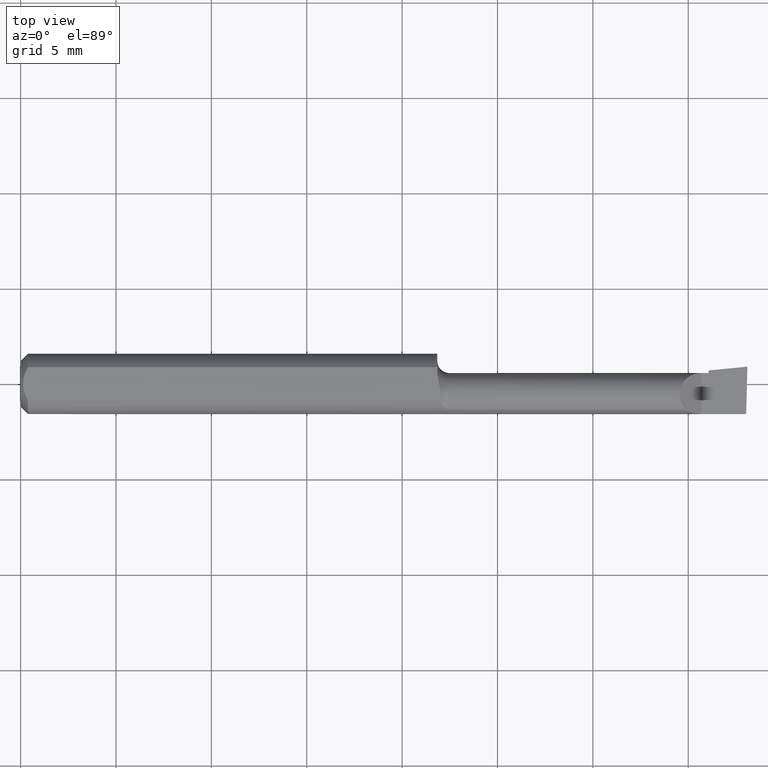
[diagram: clean part render]
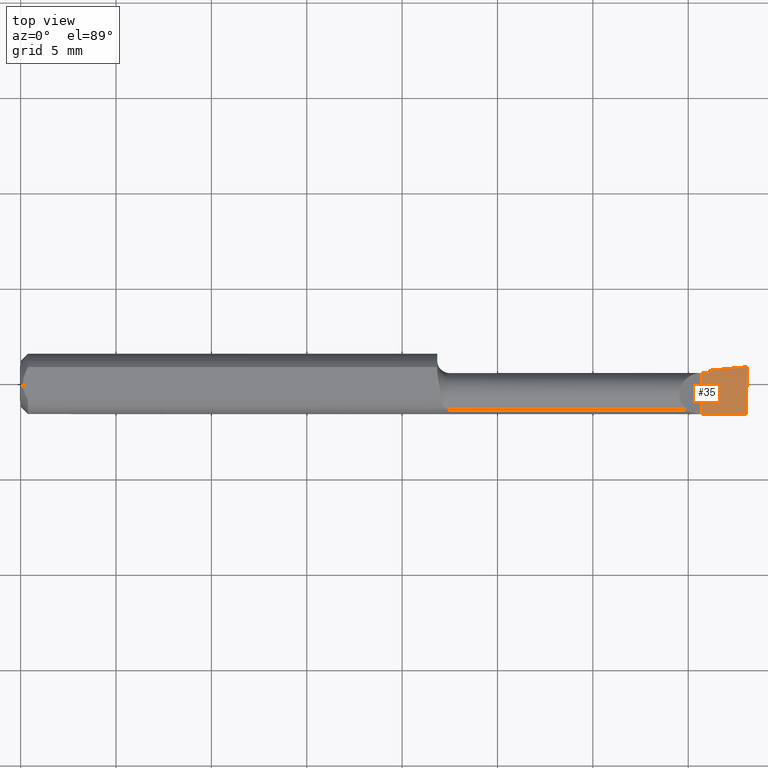
[diagram: same view with one face highlighted and labeled with its STEP entity id]
A machine part, top view. The second image highlights one B-rep face of the part: STEP entity #35.
In plain terms, the highlighted planar face has unit normal (-0, 0, -1).
Its self-contained STEP definition (entity closure, byte-faithful):
#5 = CARTESIAN_POINT ( 'NONE',  ( 1.405000000000000249, -0.06235000000000005121, 1.163414459189985436E-17 ) ) ;
#15 = LINE ( 'NONE', #594, #94 ) ;
#27 = EDGE_CURVE ( 'NONE', #593, #373, #350, .T. ) ;
#35 = ADVANCED_FACE ( 'NONE', ( #298 ), #398, .F. ) ;
#58 = DIRECTION ( 'NONE',  ( 0.02617694830784713170, 0.9996573249755579260, -3.584133854792137963E-18 ) ) ;
#69 = EDGE_CURVE ( 'NONE', #427, #373, #152, .T. ) ;
#73 = VECTOR ( 'NONE', #428, 39.37007874015748143 ) ;
#74 = LINE ( 'NONE', #502, #256 ) ;
#76 = ORIENTED_EDGE ( 'NONE', *, *, #407, .F. ) ;
#78 = VERTEX_POINT ( 'NONE', #5 ) ;
#94 = VECTOR ( 'NONE', #147, 39.37007874015748143 ) ;
#133 = LINE ( 'NONE', #370, #73 ) ;
#147 = DIRECTION ( 'NONE',  ( -0.000000000000000000, 1.000000000000000000, -0.000000000000000000 ) ) ;
#152 = LINE ( 'NONE', #492, #448 ) ;
#155 = LINE ( 'NONE', #494, #179 ) ;
#179 = VECTOR ( 'NONE', #386, 39.37007874015748143 ) ;
#204 = CARTESIAN_POINT ( 'NONE',  ( 1.500000000000000222, -0.2500000000000000555, 0.000000000000000000 ) ) ;
#214 = DIRECTION ( 'NONE',  ( -1.000000000000000000, -0.000000000000000000, -0.000000000000000000 ) ) ;
#216 = EDGE_LOOP ( 'NONE', ( #519, #430, #363, #76, #411, #379 ) ) ;
#256 = VECTOR ( 'NONE', #214, 39.37007874015748143 ) ;
#281 = CARTESIAN_POINT ( 'NONE',  ( 1.497433779686218935, -0.06235000000000005121, 2.433176676323288696E-19 ) ) ;
#297 = VECTOR ( 'NONE', #342, 39.37007874015748854 ) ;
#298 = FACE_OUTER_BOUND ( 'NONE', #216, .T. ) ;
#329 = VERTEX_POINT ( 'NONE', #574 ) ;
#342 = DIRECTION ( 'NONE',  ( 0.9953961983671786307, 0.09584575252022466130, -1.219008768213809603E-16 ) ) ;
#350 = LINE ( 'NONE', #540, #297 ) ;
#363 = ORIENTED_EDGE ( 'NONE', *, *, #27, .F. ) ;
#370 = CARTESIAN_POINT ( 'NONE',  ( 1.420000000000000151, -0.2500000000000000555, 9.797174393178828616E-18 ) ) ;
#372 = CARTESIAN_POINT ( 'NONE',  ( 1.500000000000000222, 0.03565000000000798086, 2.613156668236408690E-14 ) ) ;
#373 = VERTEX_POINT ( 'NONE', #372 ) ;
#379 = ORIENTED_EDGE ( 'NONE', *, *, #515, .F. ) ;
#386 = DIRECTION ( 'NONE',  ( 1.000000000000000000, 5.691349986800549142E-18, 0.000000000000000000 ) ) ;
#398 = PLANE ( 'NONE',  #470 ) ;
#407 = EDGE_CURVE ( 'NONE', #612, #593, #133, .T. ) ;
#411 = ORIENTED_EDGE ( 'NONE', *, *, #522, .F. ) ;
#427 = VERTEX_POINT ( 'NONE', #281 ) ;
#428 = DIRECTION ( 'NONE',  ( -5.691349986800549142E-18, 1.000000000000000000, 6.969893544162626646E-34 ) ) ;
#430 = ORIENTED_EDGE ( 'NONE', *, *, #69, .T. ) ;
#435 = DIRECTION ( 'NONE',  ( -1.224646799147353947E-16, 0.000000000000000000, -1.000000000000000000 ) ) ;
#448 = VECTOR ( 'NONE', #58, 39.37007874015748854 ) ;
#470 = AXIS2_PLACEMENT_3D ( 'NONE', #204, #435, #495 ) ;
#492 = CARTESIAN_POINT ( 'NONE',  ( 1.492525117049605665, -0.2498042633013223268, 9.154091479201524683E-19 ) ) ;
#494 = CARTESIAN_POINT ( 'NONE',  ( -2.563953169053419327E-19, 0.02264999999999994448, 1.836970198721030427E-16 ) ) ;
#495 = DIRECTION ( 'NONE',  ( -1.000000000000000000, 0.000000000000000000, 1.224646799147353947E-16 ) ) ;
#502 = CARTESIAN_POINT ( 'NONE',  ( 2.249639673992788601E-32, -0.06234999999999999570, 1.836970198721030427E-16 ) ) ;
#515 = EDGE_CURVE ( 'NONE', #78, #329, #15, .T. ) ;
#519 = ORIENTED_EDGE ( 'NONE', *, *, #632, .F. ) ;
#522 = EDGE_CURVE ( 'NONE', #329, #612, #155, .T. ) ;
#540 = CARTESIAN_POINT ( 'NONE',  ( 0.8971276994979847652, -0.02239999999999999977, 7.383056331043944924E-17 ) ) ;
#547 = CARTESIAN_POINT ( 'NONE',  ( 1.420000000000000151, 0.02264999999999999653, 1.836970198721031906E-16 ) ) ;
#555 = CARTESIAN_POINT ( 'NONE',  ( 1.420000000000000151, 0.02794687614419801361, 1.856802933193678953E-16 ) ) ;
#574 = CARTESIAN_POINT ( 'NONE',  ( 1.405000000000000249, 0.02264999999999992714, 1.163414459189985436E-17 ) ) ;
#593 = VERTEX_POINT ( 'NONE', #555 ) ;
#594 = CARTESIAN_POINT ( 'NONE',  ( 1.405000000000000249, -0.2500000000000000555, 1.163414459189985436E-17 ) ) ;
#612 = VERTEX_POINT ( 'NONE', #547 ) ;
#632 = EDGE_CURVE ( 'NONE', #427, #78, #74, .T. ) ;